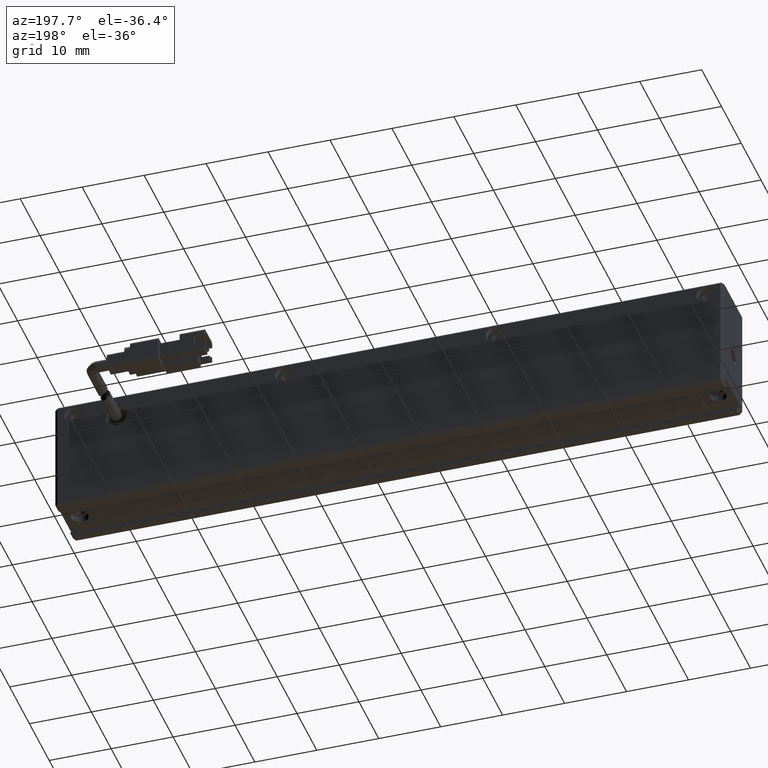
[diagram: clean part render]
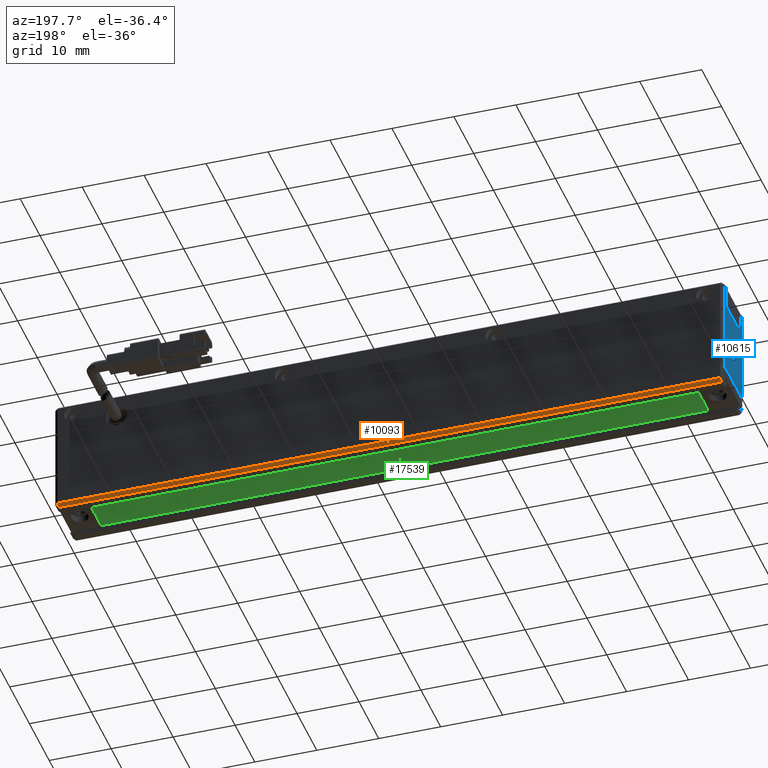
[diagram: same view with three faces highlighted in distinct colors, each labeled with its STEP entity id]
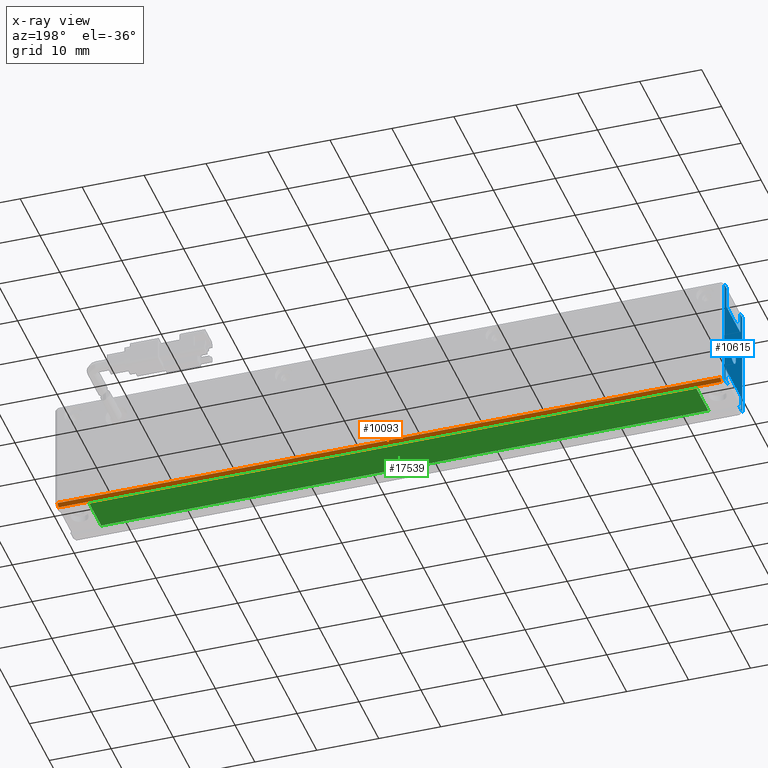
[diagram: x-ray of the same camera — body ghosted, the three highlighted faces saturated]
A machine part, auxiliary view with three faces highlighted in distinct colors.
The next image is the same camera in x-ray (body ghosted, the three faces saturated) — at least one of them is partly hidden behind the body in this view.
Their STEP definitions:

[orange] entity #10093 — the highlighted planar face has unit normal (0, 0.7071, -0.7071).
#85 = AXIS2_PLACEMENT_3D ( 'NONE', #11019, #14167, #10730 ) ;
#951 = DIRECTION ( 'NONE',  ( 1.000000000000000000, 0.0000000000000000000, 0.0000000000000000000 ) ) ;
#2406 = PLANE ( 'NONE',  #85 ) ;
#2784 = CARTESIAN_POINT ( 'NONE',  ( -37.58835582942096200, 10.32147887323943000, -8.499999999999987600 ) ) ;
#3527 = EDGE_LOOP ( 'NONE', ( #18659, #9081, #19254, #15545 ) ) ;
#3658 = LINE ( 'NONE', #6194, #8369 ) ;
#3985 = EDGE_CURVE ( 'NONE', #12184, #15347, #9231, .T. ) ;
#4573 = LINE ( 'NONE', #10361, #9816 ) ;
#5660 = LINE ( 'NONE', #10495, #10591 ) ;
#6194 = CARTESIAN_POINT ( 'NONE',  ( 69.41164417057906600, 10.32147887323943000, -8.499999999999987600 ) ) ;
#8369 = VECTOR ( 'NONE', #16398, 1000.000000000000100 ) ;
#9081 = ORIENTED_EDGE ( 'NONE', *, *, #3985, .T. ) ;
#9176 = VERTEX_POINT ( 'NONE', #21190 ) ;
#9231 = LINE ( 'NONE', #18205, #16524 ) ;
#9365 = CARTESIAN_POINT ( 'NONE',  ( 69.41164417057902400, 9.821478873239415800, -9.000000000000007100 ) ) ;
#9816 = VECTOR ( 'NONE', #10490, 1000.000000000000000 ) ;
#10093 = ADVANCED_FACE ( 'NONE', ( #10427 ), #2406, .T. ) ;
#10361 = CARTESIAN_POINT ( 'NONE',  ( -37.58835582942096200, 10.32147887323943000, -8.499999999999987600 ) ) ;
#10427 = FACE_OUTER_BOUND ( 'NONE', #3527, .T. ) ;
#10490 = DIRECTION ( 'NONE',  ( 0.0000000000000000000, -0.7071067811865474600, -0.7071067811865475700 ) ) ;
#10495 = CARTESIAN_POINT ( 'NONE',  ( -38.08835582942097600, 10.32147887323943000, -8.499999999999987600 ) ) ;
#10591 = VECTOR ( 'NONE', #951, 1000.000000000000000 ) ;
#10730 = DIRECTION ( 'NONE',  ( 0.0000000000000000000, 0.7071067811865474600, 0.7071067811865474600 ) ) ;
#11019 = CARTESIAN_POINT ( 'NONE',  ( -38.08835582942097600, 10.32147887323943000, -8.499999999999987600 ) ) ;
#11316 = VERTEX_POINT ( 'NONE', #2784 ) ;
#11459 = DIRECTION ( 'NONE',  ( -1.000000000000000000, 0.0000000000000000000, -0.0000000000000000000 ) ) ;
#12184 = VERTEX_POINT ( 'NONE', #9365 ) ;
#14167 = DIRECTION ( 'NONE',  ( 0.0000000000000000000, 0.7071067811865475700, -0.7071067811865475700 ) ) ;
#15347 = VERTEX_POINT ( 'NONE', #16623 ) ;
#15545 = ORIENTED_EDGE ( 'NONE', *, *, #19226, .T. ) ;
#16398 = DIRECTION ( 'NONE',  ( -0.0000000000000000000, -0.7071067811865474600, -0.7071067811865474600 ) ) ;
#16524 = VECTOR ( 'NONE', #11459, 1000.000000000000000 ) ;
#16557 = EDGE_CURVE ( 'NONE', #11316, #15347, #4573, .T. ) ;
#16623 = CARTESIAN_POINT ( 'NONE',  ( -37.58835582942096200, 9.821478873239415800, -9.000000000000001800 ) ) ;
#18205 = CARTESIAN_POINT ( 'NONE',  ( -38.08835582942097600, 9.821478873239415800, -9.000000000000001800 ) ) ;
#18659 = ORIENTED_EDGE ( 'NONE', *, *, #21301, .T. ) ;
#19226 = EDGE_CURVE ( 'NONE', #11316, #9176, #5660, .T. ) ;
#19254 = ORIENTED_EDGE ( 'NONE', *, *, #16557, .F. ) ;
#21190 = CARTESIAN_POINT ( 'NONE',  ( 69.41164417057905200, 10.32147887323943000, -8.499999999999987600 ) ) ;
#21301 = EDGE_CURVE ( 'NONE', #9176, #12184, #3658, .T. ) ;

[blue] entity #10615 — the highlighted planar face has unit normal (1, 0, 0).
#18 = DIRECTION ( 'NONE',  ( -0.0000000000000000000, -0.0000000000000000000, 1.000000000000000000 ) ) ;
#101 = DIRECTION ( 'NONE',  ( 0.0000000000000000000, -0.0000000000000000000, -1.000000000000000000 ) ) ;
#163 = CARTESIAN_POINT ( 'NONE',  ( -38.08835582942097600, 8.321478873239424700, -8.400000000000000400 ) ) ;
#298 = LINE ( 'NONE', #13880, #1347 ) ;
#334 = DIRECTION ( 'NONE',  ( -0.0000000000000000000, 1.000000000000000000, 0.0000000000000000000 ) ) ;
#335 = VERTEX_POINT ( 'NONE', #15307 ) ;
#386 = DIRECTION ( 'NONE',  ( 0.0000000000000000000, -1.000000000000000000, -0.0000000000000000000 ) ) ;
#537 = LINE ( 'NONE', #7854, #16706 ) ;
#547 = VECTOR ( 'NONE', #18, 1000.000000000000000 ) ;
#590 = LINE ( 'NONE', #10300, #14421 ) ;
#820 = LINE ( 'NONE', #16863, #13098 ) ;
#844 = FACE_OUTER_BOUND ( 'NONE', #13648, .T. ) ;
#980 = EDGE_CURVE ( 'NONE', #7720, #16196, #12904, .T. ) ;
#1080 = CARTESIAN_POINT ( 'NONE',  ( -38.08835582942097600, 0.3214788732394287000, 9.999999999999998200 ) ) ;
#1285 = EDGE_CURVE ( 'NONE', #335, #19475, #6041, .T. ) ;
#1347 = VECTOR ( 'NONE', #9061, 1000.000000000000000 ) ;
#1839 = ORIENTED_EDGE ( 'NONE', *, *, #14170, .T. ) ;
#2104 = CARTESIAN_POINT ( 'NONE',  ( -38.08835582942097600, 1.821478873239423100, 5.999999999999998200 ) ) ;
#2247 = VERTEX_POINT ( 'NONE', #18713 ) ;
#2672 = CARTESIAN_POINT ( 'NONE',  ( -38.08835582942097600, 1.821478873239426300, 9.999999999999998200 ) ) ;
#2689 = CARTESIAN_POINT ( 'NONE',  ( -38.08835582942097600, 9.821478873239415800, -8.499999999999989300 ) ) ;
#2916 = ORIENTED_EDGE ( 'NONE', *, *, #18259, .F. ) ;
#2919 = DIRECTION ( 'NONE',  ( 0.0000000000000000000, -1.000000000000000000, -0.0000000000000000000 ) ) ;
#2922 = FACE_BOUND ( 'NONE', #2977, .T. ) ;
#2977 = EDGE_LOOP ( 'NONE', ( #14428, #3979 ) ) ;
#3188 = EDGE_CURVE ( 'NONE', #10381, #12221, #15791, .T. ) ;
#3246 = DIRECTION ( 'NONE',  ( 0.0000000000000000000, -0.0000000000000000000, 1.000000000000000000 ) ) ;
#3524 = ORIENTED_EDGE ( 'NONE', *, *, #7749, .F. ) ;
#3528 = ORIENTED_EDGE ( 'NONE', *, *, #21052, .F. ) ;
#3610 = EDGE_CURVE ( 'NONE', #19475, #335, #17050, .T. ) ;
#3623 = LINE ( 'NONE', #10616, #15385 ) ;
#3636 = VERTEX_POINT ( 'NONE', #9941 ) ;
#3781 = VECTOR ( 'NONE', #6323, 1000.000000000000000 ) ;
#3979 = ORIENTED_EDGE ( 'NONE', *, *, #1285, .F. ) ;
#4058 = DIRECTION ( 'NONE',  ( -0.0000000000000000000, 1.000000000000000000, 0.0000000000000000000 ) ) ;
#4277 = DIRECTION ( 'NONE',  ( 1.000000000000000000, 0.0000000000000000000, 0.0000000000000000000 ) ) ;
#4810 = ORIENTED_EDGE ( 'NONE', *, *, #980, .T. ) ;
#4976 = AXIS2_PLACEMENT_3D ( 'NONE', #19071, #9067, #14023 ) ;
#4979 = LINE ( 'NONE', #7121, #9924 ) ;
#5070 = VERTEX_POINT ( 'NONE', #16483 ) ;
#5495 = CARTESIAN_POINT ( 'NONE',  ( -38.08835582942097600, 9.821478873239415800, 9.499999999999984000 ) ) ;
#5572 = DIRECTION ( 'NONE',  ( 0.0000000000000000000, 1.000000000000000000, 0.0000000000000000000 ) ) ;
#5757 = VERTEX_POINT ( 'NONE', #2689 ) ;
#6041 = CIRCLE ( 'NONE', #4976, 1.249999999999999300 ) ;
#6323 = DIRECTION ( 'NONE',  ( -0.0000000000000000000, -0.0000000000000000000, 1.000000000000000000 ) ) ;
#6712 = DIRECTION ( 'NONE',  ( 0.0000000000000000000, 1.000000000000000000, -1.084202172485504400E-016 ) ) ;
#6807 = EDGE_CURVE ( 'NONE', #7241, #12970, #9534, .T. ) ;
#6928 = DIRECTION ( 'NONE',  ( 0.0000000000000000000, 0.0000000000000000000, -1.000000000000000000 ) ) ;
#7121 = CARTESIAN_POINT ( 'NONE',  ( -38.08835582942097600, 0.3214788732394287000, 9.499999999999984000 ) ) ;
#7225 = VERTEX_POINT ( 'NONE', #11926 ) ;
#7241 = VERTEX_POINT ( 'NONE', #15879 ) ;
#7720 = VERTEX_POINT ( 'NONE', #13391 ) ;
#7738 = LINE ( 'NONE', #14971, #14292 ) ;
#7749 = EDGE_CURVE ( 'NONE', #2247, #7225, #7738, .T. ) ;
#7854 = CARTESIAN_POINT ( 'NONE',  ( -38.08835582942097600, 0.3214788732394287000, -6.000000000000001800 ) ) ;
#8105 = CARTESIAN_POINT ( 'NONE',  ( -38.08835582942097600, 0.8214788732394430200, 9.999999999999998200 ) ) ;
#8175 = AXIS2_PLACEMENT_3D ( 'NONE', #1080, #4277, #10929 ) ;
#8226 = CARTESIAN_POINT ( 'NONE',  ( -38.08835582942097600, 9.321478873239426500, -8.400000000000000400 ) ) ;
#9061 = DIRECTION ( 'NONE',  ( 0.0000000000000000000, 0.0000000000000000000, -1.000000000000000000 ) ) ;
#9067 = DIRECTION ( 'NONE',  ( -1.000000000000000000, -0.0000000000000000000, -0.0000000000000000000 ) ) ;
#9250 = EDGE_CURVE ( 'NONE', #14219, #12899, #19633, .T. ) ;
#9534 = LINE ( 'NONE', #9983, #17374 ) ;
#9562 = CARTESIAN_POINT ( 'NONE',  ( -38.08835582942097600, 8.821478873239428300, 9.499999999999980500 ) ) ;
#9665 = ORIENTED_EDGE ( 'NONE', *, *, #20910, .F. ) ;
#9734 = CARTESIAN_POINT ( 'NONE',  ( -38.08835582942097600, 2.321478873239426000, -9.000000000000001800 ) ) ;
#9924 = VECTOR ( 'NONE', #13858, 1000.000000000000000 ) ;
#9941 = CARTESIAN_POINT ( 'NONE',  ( -38.08835582942097600, 9.321478873239426500, -6.000000000000001800 ) ) ;
#9983 = CARTESIAN_POINT ( 'NONE',  ( -38.08835582942097600, 8.321478873239424700, -9.000000000000001800 ) ) ;
#10047 = VERTEX_POINT ( 'NONE', #10659 ) ;
#10300 = CARTESIAN_POINT ( 'NONE',  ( -38.08835582942097600, 0.3214788732394287000, -8.499999999999987600 ) ) ;
#10381 = VERTEX_POINT ( 'NONE', #2104 ) ;
#10419 = ORIENTED_EDGE ( 'NONE', *, *, #9250, .F. ) ;
#10475 = LINE ( 'NONE', #14967, #547 ) ;
#10615 = ADVANCED_FACE ( 'NONE', ( #844, #2922 ), #10843, .F. ) ;
#10616 = CARTESIAN_POINT ( 'NONE',  ( -38.08835582942097600, 0.3214788732394287000, -8.499999999999987600 ) ) ;
#10659 = CARTESIAN_POINT ( 'NONE',  ( -38.08835582942097600, 8.821478873239431800, 5.999999999999998200 ) ) ;
#10800 = ORIENTED_EDGE ( 'NONE', *, *, #17476, .F. ) ;
#10843 = PLANE ( 'NONE',  #8175 ) ;
#10929 = DIRECTION ( 'NONE',  ( 0.0000000000000000000, 0.0000000000000000000, -1.000000000000000000 ) ) ;
#11152 = CARTESIAN_POINT ( 'NONE',  ( -38.08835582942097600, 8.321478873239424700, -8.400000000000000400 ) ) ;
#11514 = VECTOR ( 'NONE', #6928, 1000.000000000000000 ) ;
#11604 = DIRECTION ( 'NONE',  ( 0.0000000000000000000, 0.0000000000000000000, 1.000000000000000000 ) ) ;
#11671 = ORIENTED_EDGE ( 'NONE', *, *, #12469, .T. ) ;
#11756 = LINE ( 'NONE', #16938, #11514 ) ;
#11841 = VECTOR ( 'NONE', #101, 1000.000000000000000 ) ;
#11926 = CARTESIAN_POINT ( 'NONE',  ( -38.08835582942097600, 1.321478873239426000, -6.000000000000001800 ) ) ;
#12120 = CARTESIAN_POINT ( 'NONE',  ( -38.08835582942097600, 1.321478873239426000, -8.400000000000000400 ) ) ;
#12221 = VERTEX_POINT ( 'NONE', #17712 ) ;
#12312 = EDGE_CURVE ( 'NONE', #12452, #5070, #19740, .T. ) ;
#12429 = CARTESIAN_POINT ( 'NONE',  ( -38.08835582942097600, 2.321478873239426500, -8.499999999999987600 ) ) ;
#12452 = VERTEX_POINT ( 'NONE', #15043 ) ;
#12469 = EDGE_CURVE ( 'NONE', #12970, #13097, #13985, .T. ) ;
#12899 = VERTEX_POINT ( 'NONE', #9562 ) ;
#12904 = LINE ( 'NONE', #9734, #11841 ) ;
#12909 = LINE ( 'NONE', #12120, #21501 ) ;
#12970 = VERTEX_POINT ( 'NONE', #11152 ) ;
#13097 = VERTEX_POINT ( 'NONE', #8226 ) ;
#13098 = VECTOR ( 'NONE', #386, 1000.000000000000000 ) ;
#13391 = CARTESIAN_POINT ( 'NONE',  ( -38.08835582942097600, 2.321478873239426000, -8.400000000000000400 ) ) ;
#13576 = ORIENTED_EDGE ( 'NONE', *, *, #17865, .F. ) ;
#13648 = EDGE_LOOP ( 'NONE', ( #9665, #10419, #16239, #16083, #18164, #11671, #3528, #13576, #3524, #1839, #4810, #2916, #21178, #14232, #18145, #10800 ) ) ;
#13858 = DIRECTION ( 'NONE',  ( 0.0000000000000000000, -1.000000000000000000, -0.0000000000000000000 ) ) ;
#13880 = CARTESIAN_POINT ( 'NONE',  ( -38.08835582942097600, 9.321478873239426500, 9.999999999999998200 ) ) ;
#13985 = LINE ( 'NONE', #163, #14490 ) ;
#14023 = DIRECTION ( 'NONE',  ( 0.0000000000000000000, 0.0000000000000000000, 1.000000000000000000 ) ) ;
#14170 = EDGE_CURVE ( 'NONE', #2247, #7720, #12909, .T. ) ;
#14219 = VERTEX_POINT ( 'NONE', #5495 ) ;
#14232 = ORIENTED_EDGE ( 'NONE', *, *, #21453, .F. ) ;
#14292 = VECTOR ( 'NONE', #20017, 1000.000000000000000 ) ;
#14421 = VECTOR ( 'NONE', #334, 1000.000000000000000 ) ;
#14428 = ORIENTED_EDGE ( 'NONE', *, *, #3610, .F. ) ;
#14490 = VECTOR ( 'NONE', #6712, 1000.000000000000000 ) ;
#14965 = DIRECTION ( 'NONE',  ( -1.000000000000000000, -0.0000000000000000000, -0.0000000000000000000 ) ) ;
#14967 = CARTESIAN_POINT ( 'NONE',  ( -38.08835582942097600, 9.821478873239415800, 9.999999999999998200 ) ) ;
#14971 = CARTESIAN_POINT ( 'NONE',  ( -38.08835582942097600, 1.321478873239426000, 9.999999999999998200 ) ) ;
#15043 = CARTESIAN_POINT ( 'NONE',  ( -38.08835582942097600, 0.8214788732394430200, -8.499999999999987600 ) ) ;
#15303 = VECTOR ( 'NONE', #18068, 1000.000000000000000 ) ;
#15307 = CARTESIAN_POINT ( 'NONE',  ( -38.08835582942097600, 5.321478873239426500, -2.250000000000007100 ) ) ;
#15385 = VECTOR ( 'NONE', #4058, 1000.000000000000000 ) ;
#15791 = LINE ( 'NONE', #2672, #3781 ) ;
#15879 = CARTESIAN_POINT ( 'NONE',  ( -38.08835582942097600, 8.321478873239426500, -8.499999999999987600 ) ) ;
#16083 = ORIENTED_EDGE ( 'NONE', *, *, #20344, .F. ) ;
#16196 = VERTEX_POINT ( 'NONE', #12429 ) ;
#16239 = ORIENTED_EDGE ( 'NONE', *, *, #20721, .F. ) ;
#16483 = CARTESIAN_POINT ( 'NONE',  ( -38.08835582942097600, 0.8214788732394404700, 9.499999999999984000 ) ) ;
#16706 = VECTOR ( 'NONE', #19561, 1000.000000000000000 ) ;
#16863 = CARTESIAN_POINT ( 'NONE',  ( -38.08835582942097600, 0.3214788732394287000, 5.999999999999998200 ) ) ;
#16938 = CARTESIAN_POINT ( 'NONE',  ( -38.08835582942097600, 8.821478873239426500, 9.999999999999998200 ) ) ;
#17050 = CIRCLE ( 'NONE', #18355, 1.249999999999999300 ) ;
#17374 = VECTOR ( 'NONE', #3246, 1000.000000000000000 ) ;
#17476 = EDGE_CURVE ( 'NONE', #10047, #10381, #820, .T. ) ;
#17712 = CARTESIAN_POINT ( 'NONE',  ( -38.08835582942097600, 1.821478873239423100, 9.499999999999984000 ) ) ;
#17865 = EDGE_CURVE ( 'NONE', #7225, #3636, #537, .T. ) ;
#18068 = DIRECTION ( 'NONE',  ( 0.0000000000000000000, -0.0000000000000000000, 1.000000000000000000 ) ) ;
#18145 = ORIENTED_EDGE ( 'NONE', *, *, #3188, .F. ) ;
#18164 = ORIENTED_EDGE ( 'NONE', *, *, #6807, .T. ) ;
#18200 = CARTESIAN_POINT ( 'NONE',  ( -38.08835582942097600, 0.3214788732394287000, 9.499999999999984000 ) ) ;
#18259 = EDGE_CURVE ( 'NONE', #12452, #16196, #3623, .T. ) ;
#18355 = AXIS2_PLACEMENT_3D ( 'NONE', #19938, #14965, #11604 ) ;
#18601 = VECTOR ( 'NONE', #2919, 1000.000000000000000 ) ;
#18713 = CARTESIAN_POINT ( 'NONE',  ( -38.08835582942097600, 1.321478873239426000, -8.400000000000000400 ) ) ;
#19071 = CARTESIAN_POINT ( 'NONE',  ( -38.08835582942097600, 5.321478873239426500, -1.000000000000007800 ) ) ;
#19475 = VERTEX_POINT ( 'NONE', #21589 ) ;
#19561 = DIRECTION ( 'NONE',  ( -0.0000000000000000000, 1.000000000000000000, 0.0000000000000000000 ) ) ;
#19633 = LINE ( 'NONE', #18200, #18601 ) ;
#19740 = LINE ( 'NONE', #8105, #15303 ) ;
#19938 = CARTESIAN_POINT ( 'NONE',  ( -38.08835582942097600, 5.321478873239426500, -1.000000000000007800 ) ) ;
#20017 = DIRECTION ( 'NONE',  ( -0.0000000000000000000, -0.0000000000000000000, 1.000000000000000000 ) ) ;
#20344 = EDGE_CURVE ( 'NONE', #7241, #5757, #590, .T. ) ;
#20721 = EDGE_CURVE ( 'NONE', #5757, #14219, #10475, .T. ) ;
#20910 = EDGE_CURVE ( 'NONE', #12899, #10047, #11756, .T. ) ;
#21052 = EDGE_CURVE ( 'NONE', #3636, #13097, #298, .T. ) ;
#21178 = ORIENTED_EDGE ( 'NONE', *, *, #12312, .T. ) ;
#21453 = EDGE_CURVE ( 'NONE', #12221, #5070, #4979, .T. ) ;
#21501 = VECTOR ( 'NONE', #5572, 1000.000000000000000 ) ;
#21589 = CARTESIAN_POINT ( 'NONE',  ( -38.08835582942097600, 5.321478873239426500, 0.2499999999999915600 ) ) ;

[green] entity #17539 — the highlighted planar face has unit normal (0, 0, 1).
#741 = DIRECTION ( 'NONE',  ( -0.0000000000000000000, 1.000000000000000000, -0.0000000000000000000 ) ) ;
#814 = LINE ( 'NONE', #2458, #15958 ) ;
#1333 = ORIENTED_EDGE ( 'NONE', *, *, #21031, .T. ) ;
#2049 = PLANE ( 'NONE',  #7554 ) ;
#2458 = CARTESIAN_POINT ( 'NONE',  ( -33.08835582942099100, 8.321478873239435400, -8.200000000000001100 ) ) ;
#3656 = VECTOR ( 'NONE', #13622, 1000.000000000000000 ) ;
#3803 = CARTESIAN_POINT ( 'NONE',  ( -33.08835582942099100, 2.321478873239426900, -8.200000000000001100 ) ) ;
#4180 = LINE ( 'NONE', #7096, #3656 ) ;
#5006 = VERTEX_POINT ( 'NONE', #14453 ) ;
#5299 = EDGE_CURVE ( 'NONE', #8018, #10457, #4180, .T. ) ;
#5416 = DIRECTION ( 'NONE',  ( 1.000000000000000000, 0.0000000000000000000, -0.0000000000000000000 ) ) ;
#6180 = VERTEX_POINT ( 'NONE', #10434 ) ;
#7096 = CARTESIAN_POINT ( 'NONE',  ( 64.91164417057900900, 2.321478873239426500, -8.200000000000001100 ) ) ;
#7554 = AXIS2_PLACEMENT_3D ( 'NONE', #13745, #15401, #5416 ) ;
#8018 = VERTEX_POINT ( 'NONE', #15766 ) ;
#8430 = DIRECTION ( 'NONE',  ( 1.000000000000000000, -0.0000000000000000000, -0.0000000000000000000 ) ) ;
#8463 = CARTESIAN_POINT ( 'NONE',  ( 64.91164417057900900, 2.321478873239426500, -8.200000000000001100 ) ) ;
#8737 = EDGE_CURVE ( 'NONE', #6180, #8018, #8951, .T. ) ;
#8776 = DIRECTION ( 'NONE',  ( -1.000000000000000000, 4.425314989736752700E-018, -0.0000000000000000000 ) ) ;
#8951 = LINE ( 'NONE', #11773, #19403 ) ;
#9692 = FACE_OUTER_BOUND ( 'NONE', #10396, .T. ) ;
#10396 = EDGE_LOOP ( 'NONE', ( #15045, #17873, #11694, #1333 ) ) ;
#10434 = CARTESIAN_POINT ( 'NONE',  ( -33.08835582942099100, 8.321478873239435400, -8.200000000000001100 ) ) ;
#10457 = VERTEX_POINT ( 'NONE', #8463 ) ;
#11694 = ORIENTED_EDGE ( 'NONE', *, *, #14926, .T. ) ;
#11773 = CARTESIAN_POINT ( 'NONE',  ( 64.91164417057900900, 8.321478873239428300, -8.200000000000001100 ) ) ;
#12314 = LINE ( 'NONE', #3803, #20922 ) ;
#13622 = DIRECTION ( 'NONE',  ( -0.0000000000000000000, -1.000000000000000000, -0.0000000000000000000 ) ) ;
#13745 = CARTESIAN_POINT ( 'NONE',  ( 0.0000000000000000000, 0.0000000000000000000, -8.200000000000001100 ) ) ;
#14453 = CARTESIAN_POINT ( 'NONE',  ( -33.08835582942099100, 2.321478873239426900, -8.200000000000001100 ) ) ;
#14926 = EDGE_CURVE ( 'NONE', #10457, #5006, #12314, .T. ) ;
#15045 = ORIENTED_EDGE ( 'NONE', *, *, #8737, .T. ) ;
#15401 = DIRECTION ( 'NONE',  ( 0.0000000000000000000, 0.0000000000000000000, 1.000000000000000000 ) ) ;
#15766 = CARTESIAN_POINT ( 'NONE',  ( 64.91164417057900900, 8.321478873239428300, -8.200000000000001100 ) ) ;
#15958 = VECTOR ( 'NONE', #741, 1000.000000000000000 ) ;
#17539 = ADVANCED_FACE ( 'NONE', ( #9692 ), #2049, .F. ) ;
#17873 = ORIENTED_EDGE ( 'NONE', *, *, #5299, .T. ) ;
#19403 = VECTOR ( 'NONE', #8430, 1000.000000000000000 ) ;
#20922 = VECTOR ( 'NONE', #8776, 1000.000000000000000 ) ;
#21031 = EDGE_CURVE ( 'NONE', #5006, #6180, #814, .T. ) ;